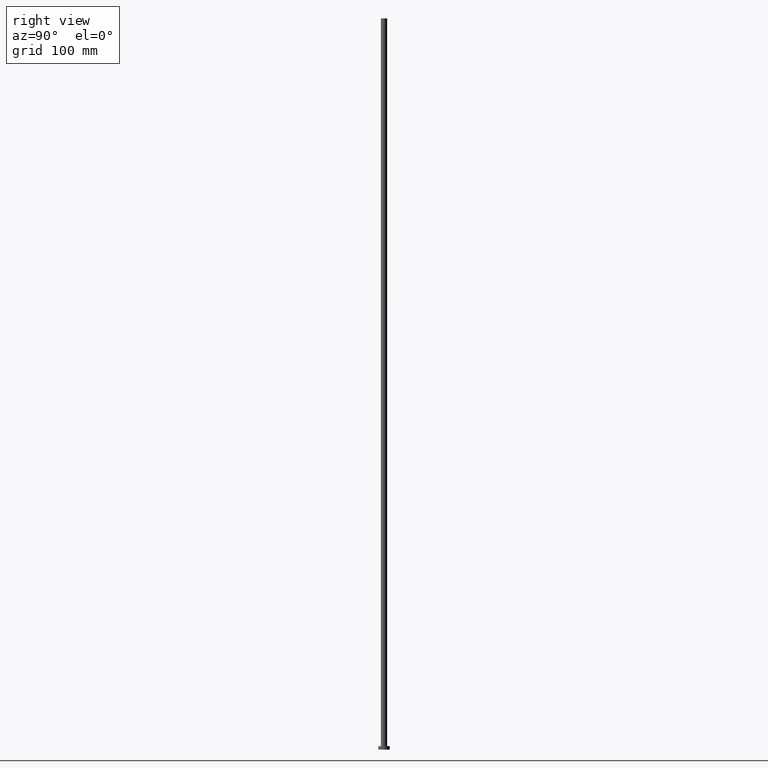
[diagram: clean part render]
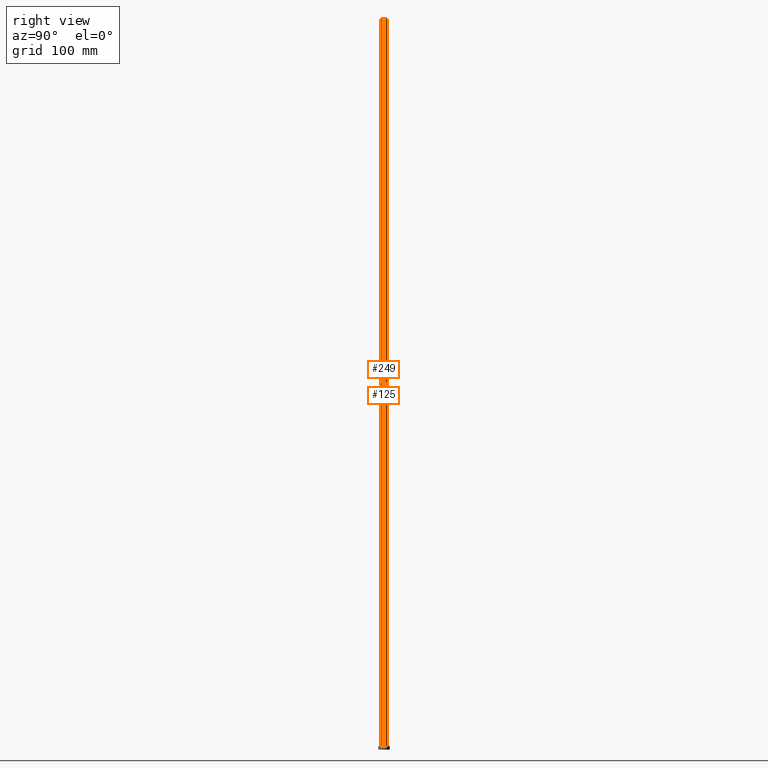
[diagram: same view with one multi-face feature highlighted, each face labeled with its STEP entity id]
A machine part, right view. The highlighted faces form ONE feature: a constant-radius fillet chain: 2 tangent blend faces with common blend radius 2.75 mm. The faces share edges in the B-rep.
Their STEP definitions:
[1] entity #125 (Cylinder):
#1 = LINE ( 'NONE', #174, #39 ) ;
#9 = VECTOR ( 'NONE', #199, 1000.000000000000000 ) ;
#25 = EDGE_CURVE ( 'NONE', #72, #151, #226, .T. ) ;
#26 = CARTESIAN_POINT ( 'NONE',  ( -2.750000000000000000, 0.000000000000000000, 630.0000000000000000 ) ) ;
#39 = VECTOR ( 'NONE', #253, 1000.000000000000000 ) ;
#47 = AXIS2_PLACEMENT_3D ( 'NONE', #245, #228, #130 ) ;
#72 = VERTEX_POINT ( 'NONE', #138 ) ;
#80 = CARTESIAN_POINT ( 'NONE',  ( -2.750000000000000000, 0.000000000000000000, 3.000000000000000000 ) ) ;
#92 = CARTESIAN_POINT ( 'NONE',  ( 2.750000000000000000, 3.367778697655221012E-16, 3.000000000000000000 ) ) ;
#95 = ORIENTED_EDGE ( 'NONE', *, *, #239, .F. ) ;
#120 = ORIENTED_EDGE ( 'NONE', *, *, #244, .T. ) ;
#124 = CARTESIAN_POINT ( 'NONE',  ( 2.750000000000000000, 3.367778697655221012E-16, 630.0000000000000000 ) ) ;
#125 = ADVANCED_FACE ( 'NONE', ( #150 ), #231, .T. ) ;
#128 = DIRECTION ( 'NONE',  ( -1.000000000000000000, 0.000000000000000000, 0.000000000000000000 ) ) ;
#130 = DIRECTION ( 'NONE',  ( 1.000000000000000000, 0.000000000000000000, 0.000000000000000000 ) ) ;
#138 = CARTESIAN_POINT ( 'NONE',  ( 2.750000000000000000, 3.367778697655221012E-16, 630.0000000000000000 ) ) ;
#139 = AXIS2_PLACEMENT_3D ( 'NONE', #210, #166, #128 ) ;
#147 = CARTESIAN_POINT ( 'NONE',  ( 0.000000000000000000, 0.000000000000000000, 3.000000000000000000 ) ) ;
#150 = FACE_OUTER_BOUND ( 'NONE', #175, .T. ) ;
#151 = VERTEX_POINT ( 'NONE', #92 ) ;
#154 = ORIENTED_EDGE ( 'NONE', *, *, #157, .F. ) ;
#157 = EDGE_CURVE ( 'NONE', #72, #252, #161, .T. ) ;
#161 = CIRCLE ( 'NONE', #47, 2.750000000000000000 ) ;
#166 = DIRECTION ( 'NONE',  ( -0.000000000000000000, -0.000000000000000000, -1.000000000000000000 ) ) ;
#171 = VERTEX_POINT ( 'NONE', #80 ) ;
#174 = CARTESIAN_POINT ( 'NONE',  ( -2.750000000000000000, 0.000000000000000000, 630.0000000000000000 ) ) ;
#175 = EDGE_LOOP ( 'NONE', ( #154, #190, #120, #95 ) ) ;
#188 = DIRECTION ( 'NONE',  ( 1.000000000000000000, 0.000000000000000000, 0.000000000000000000 ) ) ;
#190 = ORIENTED_EDGE ( 'NONE', *, *, #25, .T. ) ;
#199 = DIRECTION ( 'NONE',  ( -0.000000000000000000, -0.000000000000000000, -1.000000000000000000 ) ) ;
#210 = CARTESIAN_POINT ( 'NONE',  ( 0.000000000000000000, 0.000000000000000000, 630.0000000000000000 ) ) ;
#215 = CIRCLE ( 'NONE', #237, 2.750000000000000000 ) ;
#226 = LINE ( 'NONE', #124, #9 ) ;
#228 = DIRECTION ( 'NONE',  ( 0.000000000000000000, 0.000000000000000000, 1.000000000000000000 ) ) ;
#231 = CYLINDRICAL_SURFACE ( 'NONE', #139, 2.750000000000000000 ) ;
#235 = DIRECTION ( 'NONE',  ( 0.000000000000000000, 0.000000000000000000, 1.000000000000000000 ) ) ;
#237 = AXIS2_PLACEMENT_3D ( 'NONE', #147, #235, #188 ) ;
#239 = EDGE_CURVE ( 'NONE', #252, #171, #1, .T. ) ;
#244 = EDGE_CURVE ( 'NONE', #151, #171, #215, .T. ) ;
#245 = CARTESIAN_POINT ( 'NONE',  ( 0.000000000000000000, 0.000000000000000000, 630.0000000000000000 ) ) ;
#252 = VERTEX_POINT ( 'NONE', #26 ) ;
#253 = DIRECTION ( 'NONE',  ( -0.000000000000000000, -0.000000000000000000, -1.000000000000000000 ) ) ;
[2] entity #249 (Cylinder):
#1 = LINE ( 'NONE', #174, #39 ) ;
#6 = AXIS2_PLACEMENT_3D ( 'NONE', #144, #227, #185 ) ;
#9 = VECTOR ( 'NONE', #199, 1000.000000000000000 ) ;
#14 = DIRECTION ( 'NONE',  ( 0.000000000000000000, 0.000000000000000000, 1.000000000000000000 ) ) ;
#15 = DIRECTION ( 'NONE',  ( 1.000000000000000000, 0.000000000000000000, 0.000000000000000000 ) ) ;
#25 = EDGE_CURVE ( 'NONE', #72, #151, #226, .T. ) ;
#26 = CARTESIAN_POINT ( 'NONE',  ( -2.750000000000000000, 0.000000000000000000, 630.0000000000000000 ) ) ;
#37 = DIRECTION ( 'NONE',  ( -0.000000000000000000, -0.000000000000000000, -1.000000000000000000 ) ) ;
#39 = VECTOR ( 'NONE', #253, 1000.000000000000000 ) ;
#48 = CIRCLE ( 'NONE', #89, 2.750000000000000000 ) ;
#50 = ORIENTED_EDGE ( 'NONE', *, *, #142, .F. ) ;
#54 = ORIENTED_EDGE ( 'NONE', *, *, #239, .T. ) ;
#58 = EDGE_LOOP ( 'NONE', ( #123, #50, #54, #191 ) ) ;
#72 = VERTEX_POINT ( 'NONE', #138 ) ;
#80 = CARTESIAN_POINT ( 'NONE',  ( -2.750000000000000000, 0.000000000000000000, 3.000000000000000000 ) ) ;
#89 = AXIS2_PLACEMENT_3D ( 'NONE', #96, #14, #15 ) ;
#92 = CARTESIAN_POINT ( 'NONE',  ( 2.750000000000000000, 3.367778697655221012E-16, 3.000000000000000000 ) ) ;
#96 = CARTESIAN_POINT ( 'NONE',  ( 0.000000000000000000, 0.000000000000000000, 3.000000000000000000 ) ) ;
#109 = EDGE_CURVE ( 'NONE', #171, #151, #48, .T. ) ;
#123 = ORIENTED_EDGE ( 'NONE', *, *, #25, .F. ) ;
#124 = CARTESIAN_POINT ( 'NONE',  ( 2.750000000000000000, 3.367778697655221012E-16, 630.0000000000000000 ) ) ;
#126 = AXIS2_PLACEMENT_3D ( 'NONE', #251, #37, #176 ) ;
#137 = FACE_OUTER_BOUND ( 'NONE', #58, .T. ) ;
#138 = CARTESIAN_POINT ( 'NONE',  ( 2.750000000000000000, 3.367778697655221012E-16, 630.0000000000000000 ) ) ;
#142 = EDGE_CURVE ( 'NONE', #252, #72, #230, .T. ) ;
#144 = CARTESIAN_POINT ( 'NONE',  ( 0.000000000000000000, 0.000000000000000000, 630.0000000000000000 ) ) ;
#151 = VERTEX_POINT ( 'NONE', #92 ) ;
#171 = VERTEX_POINT ( 'NONE', #80 ) ;
#174 = CARTESIAN_POINT ( 'NONE',  ( -2.750000000000000000, 0.000000000000000000, 630.0000000000000000 ) ) ;
#176 = DIRECTION ( 'NONE',  ( -1.000000000000000000, 0.000000000000000000, 0.000000000000000000 ) ) ;
#185 = DIRECTION ( 'NONE',  ( 1.000000000000000000, 0.000000000000000000, 0.000000000000000000 ) ) ;
#191 = ORIENTED_EDGE ( 'NONE', *, *, #109, .T. ) ;
#199 = DIRECTION ( 'NONE',  ( -0.000000000000000000, -0.000000000000000000, -1.000000000000000000 ) ) ;
#226 = LINE ( 'NONE', #124, #9 ) ;
#227 = DIRECTION ( 'NONE',  ( 0.000000000000000000, 0.000000000000000000, 1.000000000000000000 ) ) ;
#230 = CIRCLE ( 'NONE', #6, 2.750000000000000000 ) ;
#233 = CYLINDRICAL_SURFACE ( 'NONE', #126, 2.750000000000000000 ) ;
#239 = EDGE_CURVE ( 'NONE', #252, #171, #1, .T. ) ;
#249 = ADVANCED_FACE ( 'NONE', ( #137 ), #233, .T. ) ;
#251 = CARTESIAN_POINT ( 'NONE',  ( 0.000000000000000000, 0.000000000000000000, 630.0000000000000000 ) ) ;
#252 = VERTEX_POINT ( 'NONE', #26 ) ;
#253 = DIRECTION ( 'NONE',  ( -0.000000000000000000, -0.000000000000000000, -1.000000000000000000 ) ) ;